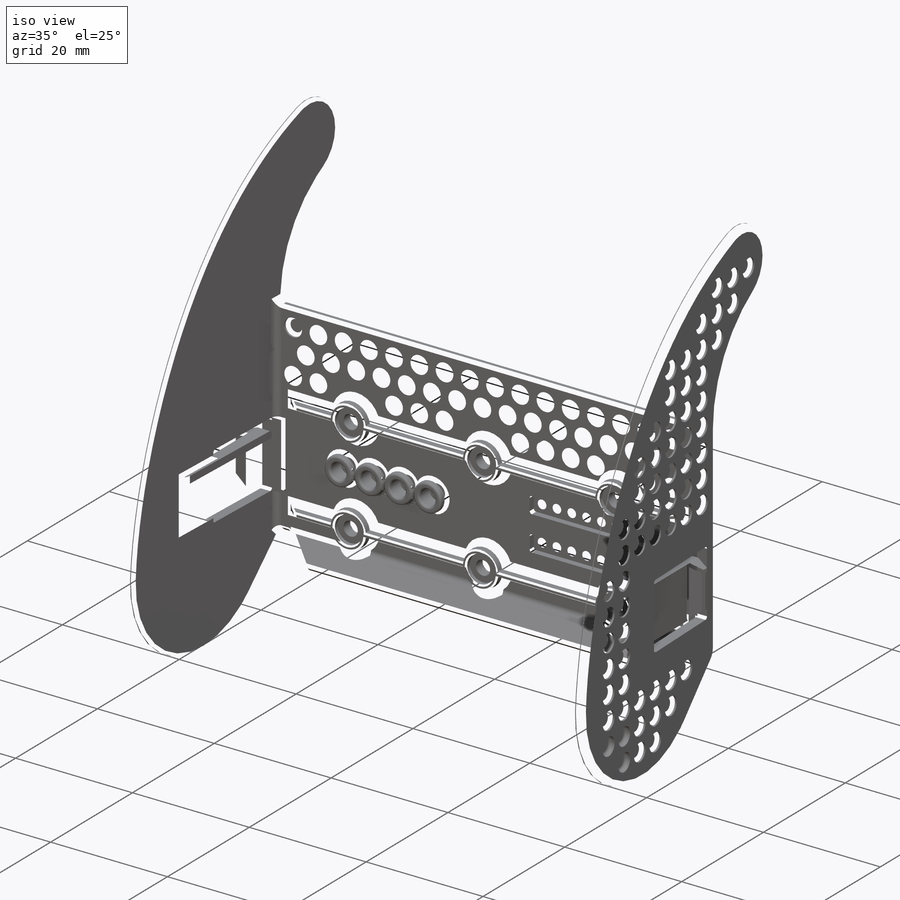
[diagram: iso view]
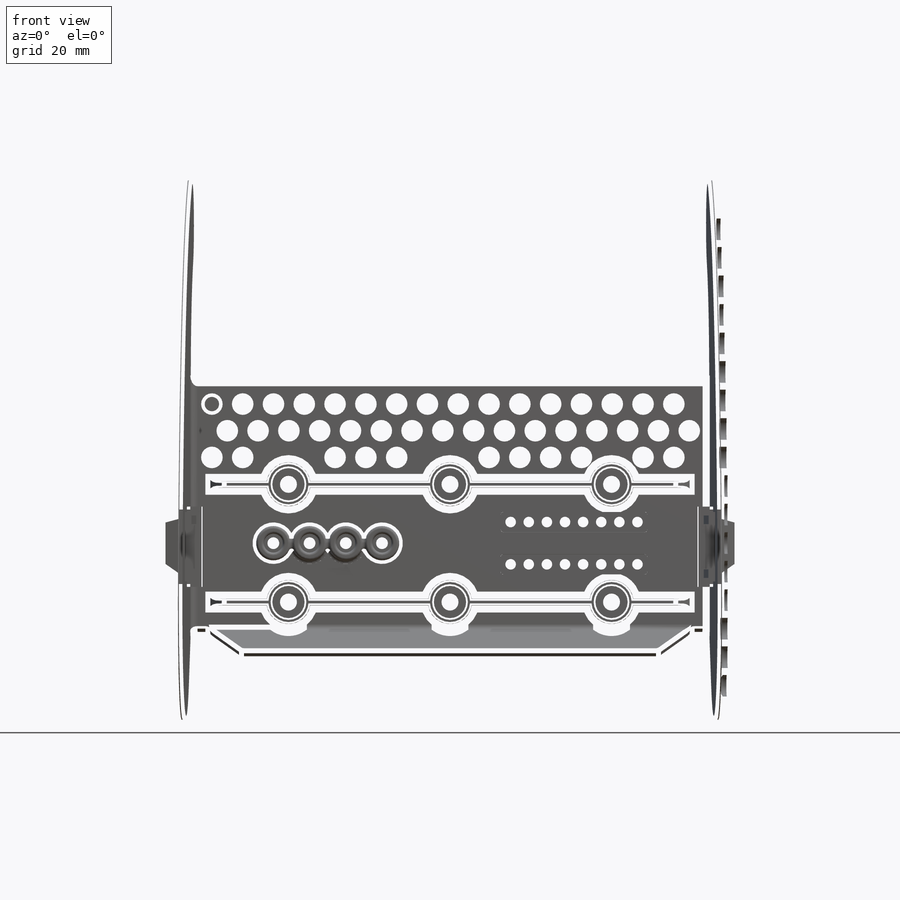
[diagram: front view]
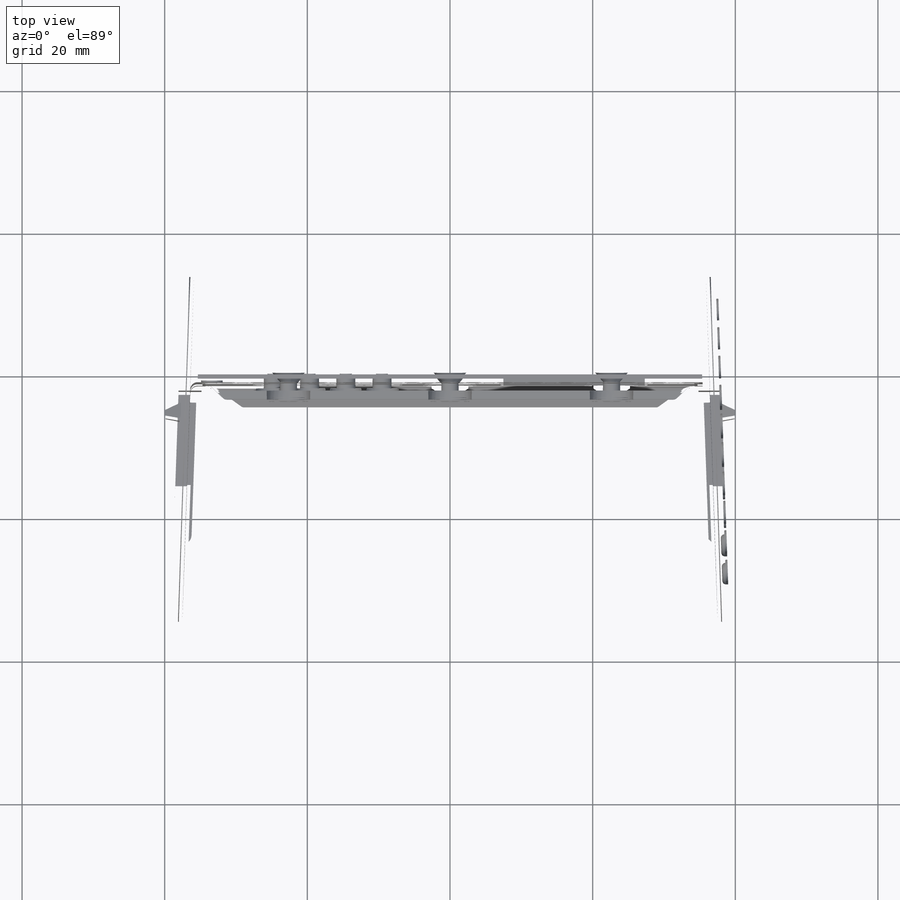
[diagram: top view]
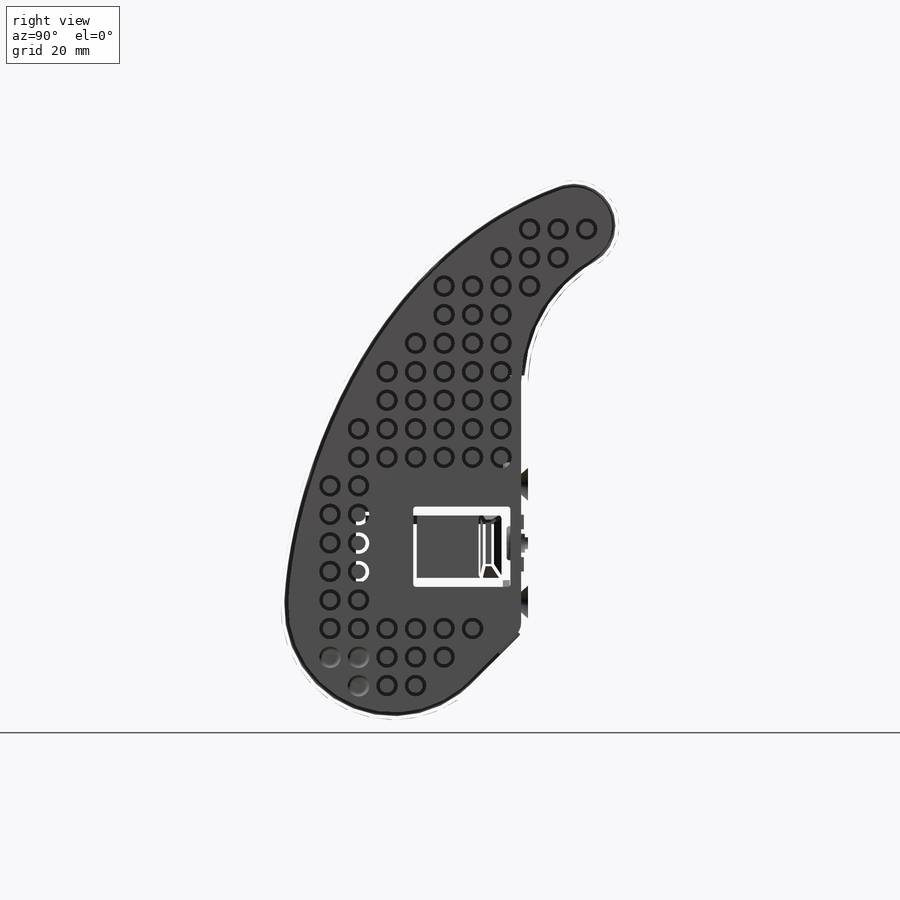
[diagram: right view]
SOLIDWORKS PART (.sldprt)
format: sldprt  version: not decoded by parser v0  size: 3,496,960 bytes
history: native  units: mm
features: sketch x38, fillet x20, cut_extrude x14, extrude x9, mirror x5, pattern_linear x3, plane x2, chamfer x2, material x1, shell x1, hole x1 (+12 scaffold rows collapsed; 1 parser-record rows omitted)
feature tree (109):
  scaffold x12  (default folders/planes/origin — collapsed)
  material  "ABS"
  sketch  "Sketch3"  dims[c1.D1=20.0mm c1.D5=12.7mm c1.D2=20.0mm c1.D3=1.5mm c1.D4=23.0mm c2.D1=~35.364464mm c3.D1=~57.806132deg c4.D1=~59.772503mm c5.D1=135.0deg c5.D3=2.0mm]
  extrude  "Extrude1"  Depth=75.946mm
  shell  "Shell1"  Thickness=1.5875mm
  sketch  "Sketch4"  dims[D1=10.0mm D2=13.0mm D3=1.5mm D4=12.0mm D5=1.25mm D6=1.0mm D7=5.0mm]
  sketch  "Sketch5"  dims[D1=3.0mm]
  extrude  "Extrude3"  Depth=2.25mm
  sketch  "Sketch6"  dims[D1=0.25mm]
  cut_extrude  "Extrude4"  [1 undecoded]
  sketch  "Sketch7"  dims[c1.D1=1.55mm c2.D1=15.0deg]
  cut_extrude  "Extrude8"  [1 undecoded]
  sketch  "Sketch8"  dims[c1.D1=1.55mm c2.D1=35.0deg]
  cut_extrude  "Extrude9"  [1 undecoded]
  plane  "Plane1"
  sketch  "Sketch9"  dims[c1.D1=1.55mm c2.D1=10.0deg c2.D2=1.55mm c3.D2=25.0deg]
  cut_extrude  "Extrude10"  [1 undecoded]
  mirror  "Mirror1"
  sketch  "Sketch11"  dims[D1=1.5875mm D2=3.0mm]
  extrude  "Extrude12"  [1 undecoded]
  sketch  "Sketch12"  dims[c1.D1=~6.234619mm c2.D1=45.0deg c2.D2=2.5mm]
  cut_extrude  "Extrude13"  [1 undecoded]
  mirror  "Mirror3"
  plane  "Plane2"  Offset=3.7592mm
  sketch  "Sketch13"  dims[c1.D8=6.2484mm c1.D9=~3.371323mm c1.D10=~3.371323mm c1.D1=10.0mm c1.D2=19.05mm c1.D3=50.8mm c1.D4=1.27mm c1.D5=2.75mm c1.D6=1.27mm c1.D7=2.75mm c2.D1=12.5mm]
  extrude  "Extrude14"  [1 undecoded]
  sketch  "Sketch23"  dims[c1.D1=4.826mm c1.D2=4.826mm c2.D1=4.826mm c2.D3=3.81mm c2.D4=3.81mm c3.D3=1.27mm c3.D4=1.27mm c4.D3=0.635mm c4.D4=0.635mm]
  extrude  "Extrude19"  Depth=0.762mm
  sketch  "Sketch27"  dims[D1=0.127mm D2=0.127mm D3=0.127mm D4=20.574mm]
  cut_extrude  "Extrude22"  Depth=1.016mm
  pattern_linear  "LPattern2"  Count1=2 Count2=1 Spacing1=5.926666mm Spacing2=2.54mm
  sketch  "Sketch25"  dims[D1=2.6924mm D2=2.4384mm]
  cut_extrude  "Extrude20"  Depth=0.4318mm
  sketch  "Sketch26"  dims[D1=1.651mm D2=1.778mm]
  cut_extrude  "Extrude21"  [1 undecoded]
  sketch  "Sketch16"  dims[D5=1.0mm D6=10.0mm D7=5.0mm]
  sketch  "Sketch17"  dims[D5=1.0mm D6=1.0mm D7=5.0mm]
  sketch  "Sketch34"  dims[D1=4.5212mm]
  cut_extrude  "Extrude25"  Depth=0.889mm
  sketch  "Sketch19"  dims[c1.D1=~3.04999mm c2.D1=45.0deg c2.D2=1.5mm]
  cut_extrude  "Extrude15"  [1 undecoded]
  mirror  "Mirror4"
  sketch  "Sketch30"  dims[D1=~0.991357mm]
  cut_extrude  "Extrude24"  Depth=2.6416mm
  sketch  "Sketch32"
  hole  "CSK for #2 Flat Head Machine Screw1"  Diameter=2.4384mm Depth=38.439207mm
  sketch  "3DSketch2"
  sketch  "Sketch33"  dims[hole-wizard template sketch: 55 standard entries collapsed; hole parameters kept: c17.Thru Hole Depth=~38.439207mm c17.Near C'Sink Dia.=~4.589602mm c17.D4=~3.666174mm c17.Near C'Sink Angle=82.0deg]
  sketch  "Sketch22"  dims[D1=3.0mm D2=3.0mm D3=3.0mm]
  cut_extrude  "Extrude18"  Depth=0.79375mm
  sketch  "Sketch10"  dims[c1.D5=3.0mm c1.D6=4.0mm c1.D4=3.0mm c2.D5=2.0mm c2.D6=5.0mm c2.D7=2.5mm c2.D2=3.0mm c2.D3=3.0mm c2.D4=17.0mm c2.D1=5.5mm c3.D4=4.0mm c3.D5=4.0mm c3.D2=4.0mm c3.D3=4.0mm c3.D1=2.0mm c3.D6=2.0mm c4.D5=2.0mm]
  sketch  "Sketch21"  dims[D1=3.0mm]
  cut_extrude  "Extrude17"  Depth=0.79375mm
  pattern_linear  "LPattern1"  Count1=4 Count2=1 Spacing1=5.08mm Spacing2=50mm
  fillet  "Fillet22"  Radius=0.381mm
  sketch  "Draft4"  dims[D1=1.0deg]
  fillet  "Fillet12"  Radius=0.5mm
  mirror  "Mirror8"
  sketch  "Draft5"  dims[D1=1.0deg]
  fillet  "Fillet13"  Radius=0.5mm
  sketch  "Sketch29"  dims[D1=1.4732mm]
  cut_extrude  "Cut-Extrude1"  [1 undecoded]
  pattern_linear  "LPattern3"  Count1=8 Count2=2 Spacing1=2.54mm Spacing2=5.926667mm
  sketch  "Draft1"  dims[D1=2.0deg]
  sketch  "Draft2"  dims[D1=2.0deg]
  sketch  "Draft3"  dims[D1=2.0deg]
  fillet  "Fillet2"  Radius=0.4mm
  fillet  "Fillet1"  Radius=0.5mm
  fillet  "Fillet4"  Radius=1mm
  fillet  "Fillet9"  Radius=3mm
  fillet  "Fillet7"  Radius=1mm
  fillet  "Fillet8"  Radius=1mm
  fillet  "Fillet5"  Radius=1mm
  fillet  "Fillet17"  Radius=0.5mm
  fillet  "Fillet18"  Radius=0.25mm
  fillet  "Fillet19"  Radius=0.5mm
  fillet  "Fillet20"  Radius=0.5mm
  fillet  "Fillet21"  Radius=0.25mm
  fillet  "Fillet24"  Radius=0.508mm
  fillet  "Fillet26"  Radius=0.381mm
  sketch  "Draft9"  dims[D1=0.5deg]
  fillet  "Fillet29"  Radius=0.381mm
  sketch  "Draft10"  dims[D1=1.0deg]
  sketch  "Sketch37"  dims[D1=17.78mm]
  extrude  "Extrude27"  [1 undecoded]
  parser-record x1  (decoder bookkeeping rows leaked as tree rows — omitted from the tree; the rows remain in map.json)
  sketch  "Sketch35"  dims[D2=21.59mm D1=0.0mm]
  extrude  "Extrude26"  Depth=0.889mm
  chamfer  "Chamfer1"  Distance=2.032mm Angle=45deg
  sketch  "Sketch39"
  extrude  "Extrude28"  [1 undecoded]
  sketch  "Draft11"  dims[D1=9.0deg]
  sketch  "Sketch42"  dims[D1=6.35mm]
  extrude  "Extrude29"  Depth=0.762mm
  chamfer  "Chamfer2"  Distance=0.762mm Angle=45deg
  mirror  "Mirror10"
  fillet  "Fillet33"  Radius=1.27mm
  fillet  "Fillet35"  Radius=0.508mm
decode coverage: 73 of 93 modeling features carry decoded parameters
note: ~ marks probable driven/reference dimensions
note: 12 parameter values undecoded
summary: no parameter record found for 12 features
note: suppression state not decoded; provenance and decode notes live in map.json
